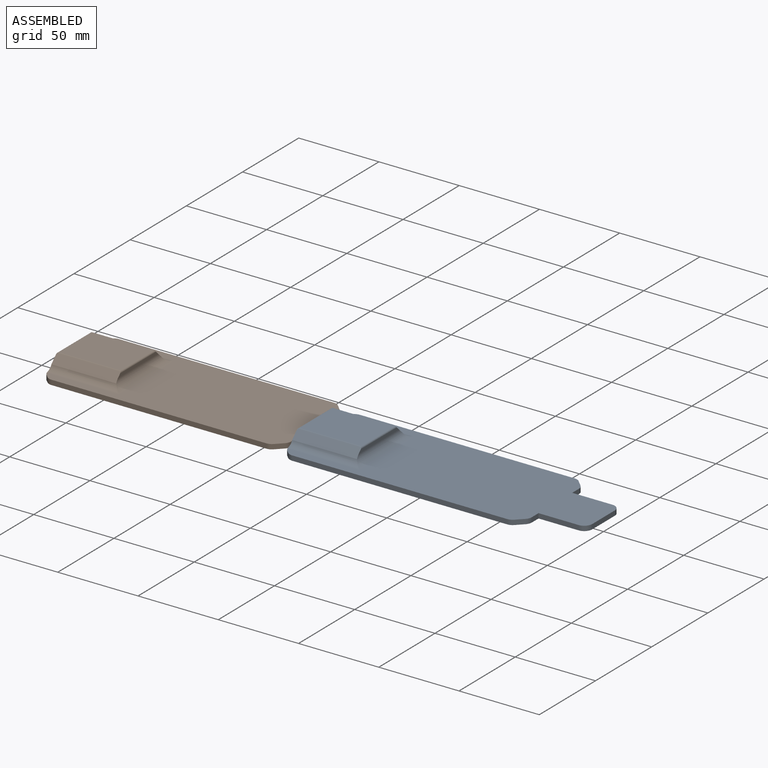
[diagram: assembled view]
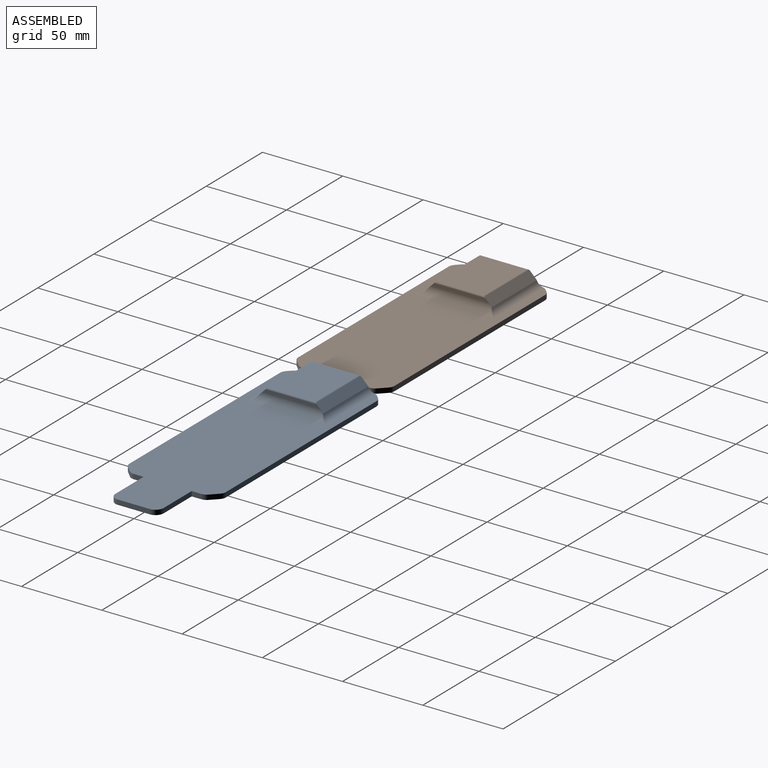
[diagram: assembled view, second angle]
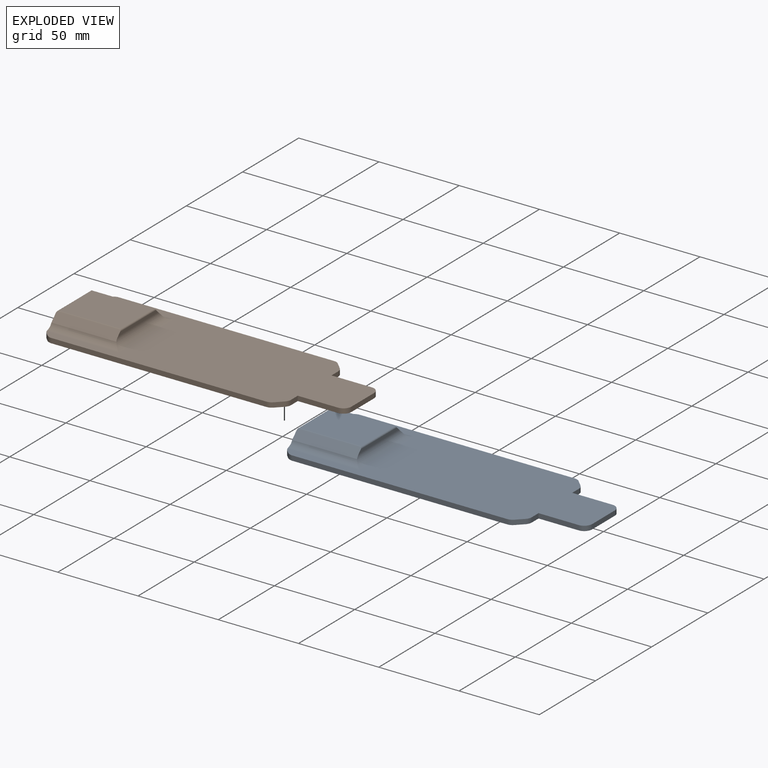
[diagram: exploded view]
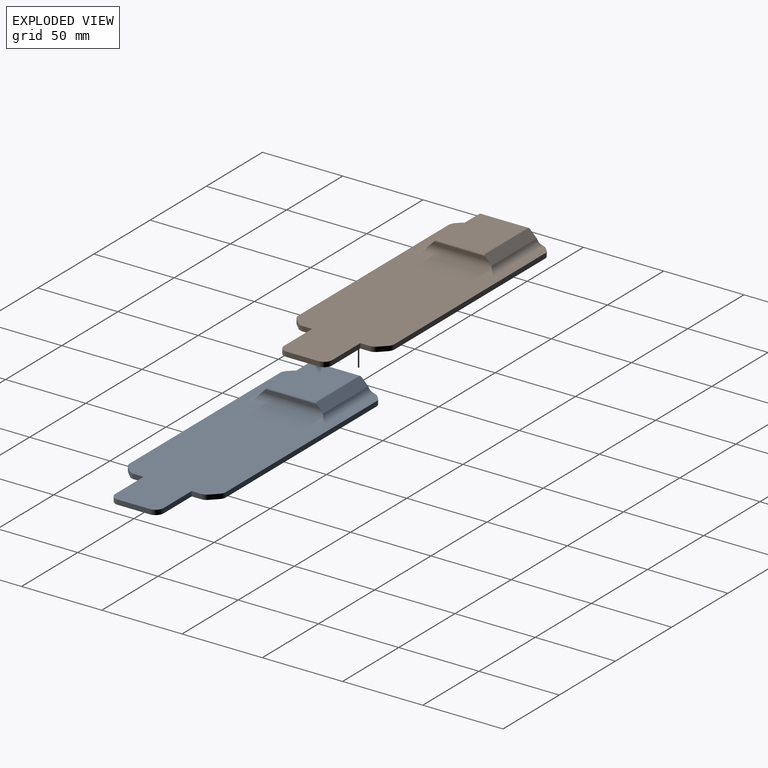
[diagram: exploded view, second angle]
ASSEMBLY  parts=2 mates=2
PART A: 125 faces, bbox 180x60x11 mm
  f0: plane 180x60mm, normal (0,0,-1), area 9041mm2, adj f2,f3,f4,f5,f9,f10,f15,f18
  f1: plane 179.72x60mm, normal (0,0,1), area 7598.8mm2, adj f2,f3,f5,f18,f19,f20,f21,f22
  f2: plane 20x3mm, normal (1,0,0), area 60mm2, adj f0,f1,f108,f109
  f3: plane 133.86x3mm, normal (0,1,0), area 401.6mm2, adj f0,f1,f112,f115
  f4: plane 45.86x10mm, normal (-1,0,0), area 264.5mm2, adj f0,f8,f9,f10,f11,f12,f13,f14
  f5: plane 133.86x3mm, normal (0,-1,0), area 401.6mm2, adj f0,f1,f111,f114
  f6: plane 36x2mm, normal (1,0,0), area 68mm2, adj f16,f17,f119,f122
  f7: plane 38x29.17mm, normal (0,0,1), area 1108.5mm2, adj f121,f122,f123,f124
  f8: plane 30x4.66mm, normal (0,0,1), area 139.7mm2, adj f4,f9,f14,f15
  f9: plane 30x2.5mm, normal (0,-1,0), area 75mm2, adj f0,f4,f8,f15
  f10: plane 30x2.5mm, normal (0,1,0), area 75mm2, adj f0,f4,f11,f15
  f11: plane 30x4.66mm, normal (0,0,1), area 139.7mm2, adj f4,f10,f12,f15
  f12: plane 30x3mm, normal (0,1,0), area 90mm2, adj f4,f11,f13,f15
  f13: plane 30.5x30mm, normal (0,0,-1), area 915mm2, adj f4,f12,f14,f15
  f14: plane 30x3mm, normal (0,-1,0), area 90mm2, adj f4,f8,f13,f15
  f15: plane 30.5x5.5mm, normal (-1,0,0), area 144.5mm2, adj f0,f8,f9,f10,f11,f12,f13,f14
  f16: plane 40.42x4.71mm, normal (0,0.71,0.71), area 266.5mm2, adj f4,f6,f118,f119,f122,f123,f124
  f17: plane 40.42x4.71mm, normal (0,-0.71,0.71), area 266.5mm2, adj f4,f6,f119,f120,f121,f122,f123
  f18: plane 3x2.07mm, normal (-0.71,0.71,0), area 8.8mm2, adj f0,f1,f115,f116
  f19: plane 3x2.07mm, normal (-0.71,-0.71,0), area 8.8mm2, adj f0,f1,f114,f117
  f20: plane 25x3mm, normal (0,-1,0), area 75mm2, adj f0,f1,f21,f108
  f21: plane 5.93x3mm, normal (1,0,0), area 17.8mm2, adj f0,f1,f20,f110
  f22: plane 25x3mm, normal (0,1,0), area 75mm2, adj f0,f1,f23,f109
  f23: plane 5.93x3mm, normal (1,0,0), area 17.8mm2, adj f0,f1,f22,f113
  f24: plane 4.07x4.07mm, normal (0.71,0.71,0), area 17.3mm2, adj f0,f1,f112,f113
  f25: plane 4.07x4.07mm, normal (0.71,-0.71,0), area 17.3mm2, adj f0,f1,f110,f111
  f26: plane 1.26x1mm, normal (0,-1,0), area 1.3mm2, adj f0,f27,f38,f39
  f27: plane 5.59x2.37mm, normal (-0.92,0.39,0), area 6.1mm2, adj f0,f26,f28,f39
  f28: plane 4.33x4.32mm, normal (-0.71,-0.71,0), area 6.1mm2, adj f0,f27,f29,f39
  f29: plane 1.42x1mm, normal (0,1,0), area 1.4mm2, adj f0,f28,f30,f39
  f30: plane 4.82x4.75mm, normal (0.71,0.7,0), area 6.8mm2, adj f0,f29,f31,f39
  f31: plane 4.82x1.02mm, normal (-0.98,-0.21,0), area 4.9mm2, adj f0,f30,f32,f39
  f32: plane 1.15x1mm, normal (0,1,0), area 1.2mm2, adj f0,f31,f33,f39
  f33: plane 9.92x2.09mm, normal (0.98,0.21,0), area 10.1mm2, adj f0,f32,f34,f39
  f34: plane 1.15x1mm, normal (0,-1,0), area 1.2mm2, adj f0,f33,f35,f39
  f35: plane 4x1mm, normal (-0.98,-0.21,0), area 4.1mm2, adj f0,f34,f36,f39
  f36: plane 1.18x1mm, normal (-0.6,-0.8,0), area 1.5mm2, adj f0,f35,f37,f39
  f37: extruded ~2.45x1mm, area 2.6mm2, adj f0,f36,f38,f39
  f38: extruded ~2.44x1mm, area 2.6mm2, adj f0,f26,f37,f39
  f39: plane 9.92x8.39mm, normal (0,0,-1), area 25.1mm2, adj f26,f27,f28,f29,f30,f31,f32,f33
  f40: extruded ~2.41x1mm, area 2.5mm2, adj f41,f55,f56,f107
  f41: plane 1.1x1mm, normal (0,1,0), area 1.1mm2, adj f40,f42,f56,f107
  f42: plane 7.92x1.7mm, normal (-0.98,-0.21,0), area 8.1mm2, adj f41,f43,f56,f107
  f43: plane 1.21x1mm, normal (0,-1,0), area 1.2mm2, adj f42,f44,f56,f107
  f44: extruded ~2.05x1mm, area 2.2mm2, adj f43,f45,f56,f107
  f45: extruded ~2.21x1mm, area 2.4mm2, adj f44,f46,f56,f107
  f46: extruded ~2.59x1mm, area 2.7mm2, adj f45,f55,f56,f107
  f47: extruded ~3.13x1mm, area 3.2mm2, adj f0,f48,f54,f56
  f48: extruded ~2.95x1mm, area 3.2mm2, adj f0,f47,f49,f56
  f49: extruded ~2.85x1.01mm, area 3.1mm2, adj f0,f48,f50,f56
  f50: plane 2.32x1mm, normal (0,1,0), area 2.3mm2, adj f0,f49,f51,f56
  f51: plane 9.92x2.09mm, normal (0.98,0.21,0), area 10.1mm2, adj f0,f50,f52,f56
  f52: plane 2.39x1mm, normal (0,-1,0), area 2.4mm2, adj f0,f51,f53,f56
  f53: extruded ~3.1x1mm, area 3.2mm2, adj f0,f52,f54,f56
  f54: extruded ~2.09x2.03mm, area 3mm2, adj f0,f47,f53,f56
  f55: extruded ~1.75x1.59mm, area 2.4mm2, adj f40,f46,f56,f107
  f56: plane 9.92x8.23mm, normal (0,0,-1), area 29.7mm2, adj f40,f41,f42,f43,f44,f45,f46,f47
  f57: extruded ~2.22x1mm, area 2.5mm2, adj f0,f58,f83,f84
  f58: extruded ~1x0.95mm, area 1mm2, adj f0,f57,f59,f84
  f59: extruded ~1x0.75mm, area 0.9mm2, adj f0,f58,f60,f84
  f60: extruded ~1.35x1mm, area 1.6mm2, adj f0,f59,f61,f84
  f61: extruded ~1x0.96mm, area 1.2mm2, adj f0,f60,f62,f84
  f62: extruded ~1x0.49mm, area 0.6mm2, adj f0,f61,f63,f84
  f63: extruded ~1x0.63mm, area 0.6mm2, adj f0,f62,f64,f84
  f64: extruded ~1.28x1mm, area 1.4mm2, adj f0,f63,f65,f84
  f65: extruded ~1.46x1mm, area 1.6mm2, adj f0,f64,f66,f84
  f66: extruded ~1.02x1mm, area 1mm2, adj f0,f65,f67,f84
  f67: extruded ~1x1mm, area 1.1mm2, adj f0,f66,f68,f84
  f68: plane 1.02x1mm, normal (-0.92,-0.4,0), area 1.1mm2, adj f0,f67,f69,f84
  f69: extruded ~1.22x1mm, area 1.3mm2, adj f0,f68,f70,f84
  f70: extruded ~1.25x1mm, area 1.3mm2, adj f0,f69,f71,f84
  f71: extruded ~2.35x1mm, area 2.5mm2, adj f0,f70,f72,f84
  f72: extruded ~2.06x1mm, area 2.3mm2, adj f0,f71,f73,f84
  f73: extruded ~1.36x1mm, area 1.4mm2, adj f0,f72,f74,f84
  f74: extruded ~1.42x1.15mm, area 1.8mm2, adj f0,f73,f75,f84
  f75: extruded ~1.33x1mm, area 1.6mm2, adj f0,f74,f76,f84
  f76: extruded ~1x0.93mm, area 1mm2, adj f0,f75,f77,f84
  f77: extruded ~1.41x1mm, area 1.6mm2, adj f0,f76,f78,f84
  f78: extruded ~1.74x1mm, area 1.9mm2, adj f0,f77,f79,f84
  f79: extruded ~2.3x1mm, area 2.4mm2, adj f0,f78,f80,f84
  f80: plane 1.15x1mm, normal (1,0,0), area 1.2mm2, adj f0,f79,f81,f84
  f81: extruded ~1.03x1mm, area 1.1mm2, adj f0,f80,f82,f84
  f82: extruded ~1.26x1mm, area 1.3mm2, adj f0,f81,f83,f84
  f83: extruded ~2.68x1mm, area 2.9mm2, adj f0,f57,f82,f84
  f84: plane 10.19x6.92mm, normal (0,0,-1), area 21.6mm2, adj f57,f58,f59,f60,f61,f62,f63,f64
  f85: plane 4.99x1mm, normal (0,-1,0), area 5mm2, adj f0,f86,f96,f97
  f86: plane 1.03x1mm, normal (-0.98,-0.21,0), area 1.1mm2, adj f0,f85,f87,f97
  f87: plane 3.83x1mm, normal (0,1,0), area 3.8mm2, adj f0,f86,f88,f97
  f88: plane 3.64x1mm, normal (-0.98,-0.21,0), area 3.7mm2, adj f0,f87,f89,f97
  f89: plane 3.59x1mm, normal (0,-1,0), area 3.6mm2, adj f0,f88,f90,f97
  f90: plane 1.03x1mm, normal (-0.98,-0.19,0), area 1mm2, adj f0,f89,f91,f97
  f91: plane 3.57x1mm, normal (0,1,0), area 3.6mm2, adj f0,f90,f92,f97
  f92: plane 3.18x1mm, normal (-0.98,-0.2,0), area 3.3mm2, adj f0,f91,f93,f97
  f93: plane 3.84x1mm, normal (0,-1,0), area 3.8mm2, adj f0,f92,f94,f97
  f94: plane 1.04x1mm, normal (-0.98,-0.2,0), area 1.1mm2, adj f0,f93,f95,f97
  f95: plane 4.99x1mm, normal (0,1,0), area 5mm2, adj f0,f94,f96,f97
  f96: plane 9.92x2.09mm, normal (0.98,0.21,0), area 10.1mm2, adj f0,f85,f95,f97
  f97: plane 9.92x7.08mm, normal (0,0,-1), area 23.1mm2, adj f85,f86,f87,f88,f89,f90,f91,f92
  f98: extruded ~1x0.83mm, area 0.9mm2, adj f0,f99,f105,f106
  f99: extruded ~1x0.52mm, area 0.6mm2, adj f0,f98,f100,f106
  f100: extruded ~1x0.5mm, area 0.5mm2, adj f0,f99,f101,f106
  f101: extruded ~1x0.73mm, area 0.8mm2, adj f0,f100,f102,f106
  f102: extruded ~1x0.8mm, area 0.9mm2, adj f0,f101,f103,f106
  f103: extruded ~1x0.54mm, area 0.6mm2, adj f0,f102,f104,f106
  f104: extruded ~1x0.47mm, area 0.5mm2, adj f0,f103,f105,f106
  f105: extruded ~1x0.76mm, area 0.8mm2, adj f0,f98,f104,f106
  f106: plane 1.84x1.68mm, normal (0,0,-1), area 2.5mm2, adj f98,f99,f100,f101,f102,f103,f104,f105
  f107: plane 7.92x5.65mm, normal (0,0,-1), area 32.3mm2, adj f40,f41,f42,f43,f44,f45,f46,f55
  f108: cylinder r=5mm len=5mm, axis (0,0,-1), area 23.6mm2, adj f0,f1,f2,f20
  f109: cylinder r=5mm len=5mm, axis (0,0,1), area 23.6mm2, adj f0,f1,f2,f22
  f110: cylinder r=5mm len=3.54mm, axis (0,0,-1), area 11.8mm2, adj f0,f1,f21,f25
  f111: cylinder r=5mm len=3.54mm, axis (0,0,1), area 11.8mm2, adj f0,f1,f5,f25
  f112: cylinder r=5mm len=3.54mm, axis (0,0,1), area 11.8mm2, adj f0,f1,f3,f24
  f113: cylinder r=5mm len=3.54mm, axis (0,0,-1), area 11.8mm2, adj f0,f1,f23,f24
  f114: cylinder r=5mm len=3.54mm, axis (0,0,-1), area 11.8mm2, adj f0,f1,f5,f19
  f115: cylinder r=5mm len=3.54mm, axis (0,0,1), area 11.8mm2, adj f0,f1,f3,f18
  f116: cylinder r=5mm len=3.54mm, axis (0,0,1), area 11.9mm2, adj f0,f1,f4,f18,f118
  f117: cylinder r=5mm len=3.54mm, axis (0,0,1), area 11.9mm2, adj f0,f1,f4,f19,f120
  f118: cylinder r=5mm len=45mm, axis (-1,0,0), area 245.7mm2, adj f1,f4,f16,f116,f119
  f119: cylinder r=5mm len=49.17mm, axis (0,1,0), area 333.2mm2, adj f1,f6,f16,f17,f118,f120
  f120: cylinder r=5mm len=45mm, axis (1,0,0), area 245.7mm2, adj f1,f4,f17,f117,f119
  f121: cylinder r=1mm len=39.41mm, axis (1,0,0), area 30.4mm2, adj f7,f17,f122,f123
  f122: cylinder r=1mm len=32mm, axis (0,-1,0), area 48mm2, adj f6,f7,f16,f17,f121,f124
  f123: cylinder r=1mm len=32mm, axis (0,1,0), area 48mm2, adj f4,f7,f16,f17,f121,f124
  f124: cylinder r=1mm len=39.41mm, axis (1,0,0), area 30.4mm2, adj f7,f16,f122,f123
PART B: same geometry as A
PLACE A t=(120,0,-8)mm
PLACE B t=(-30,0,-5.5)mm
MATE planar A.f13 <-> B.f1  axis (0,0,-1) through (135,0,-2.5)mm
MATE fastened B.f1 <-> A.f13  axis (0,0,1) through (150,0,-2.5)mm
